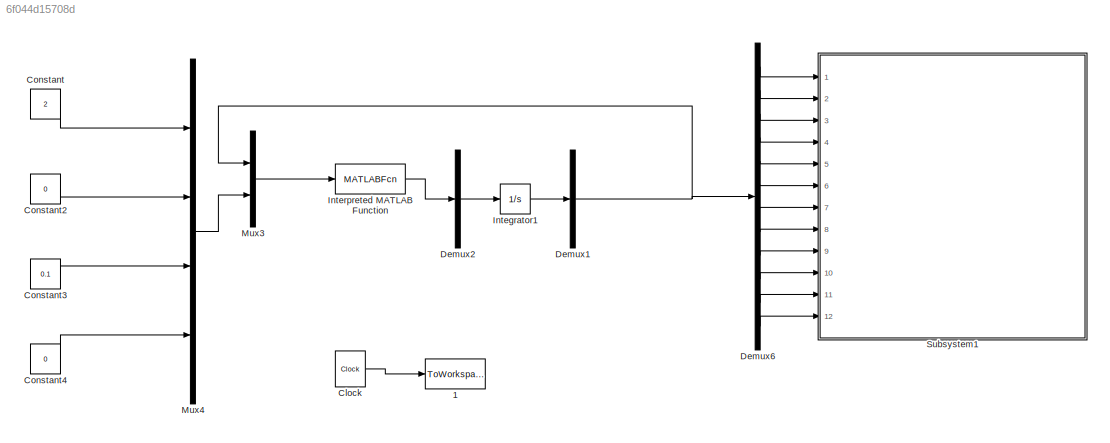
MODEL slx_6f044d15708d
KIND model
CONFIG AbsTol = auto
CONFIG EnableMultiTasking = off
CONFIG FixedStep = auto
CONFIG MaxStep = auto
CONFIG MinStep = auto
CONFIG RelTol = 1e-3
CONFIG SampleTimeConstraint = Unconstrained
CONFIG Solver = VariableStepAuto
CONFIG SolverName = VariableStepAuto
CONFIG StartTime = 0.0
CONFIG StopTime = 10.0
BLOCK [ToWorkspace] 1
  FixptAsFi = on
  MaxDataPoints = inf
  Ports = [1]
  SampleTime = -1
  VariableName = tme
BLOCK [Clock] Clock
BLOCK [Constant] Constant
  Value = 2
BLOCK [Constant] Constant2
  Value = 0
BLOCK [Constant] Constant3
  Value = 0.1
BLOCK [Constant] Constant4
  Value = 0
BLOCK [Demux] Demux1
  Outputs = [12 ]
  Ports = [1, 1]
BLOCK [Demux] Demux2
  Outputs = [12]
  Ports = [1, 1]
BLOCK [Demux] Demux6
  Outputs = [1 1 1 1 1 1 1 1 1 1 1 1]
  Ports = [1, 12]
BLOCK [Integrator] Integrator1
  InitialCondition = XIC
  Ports = [1, 1]
BLOCK [MATLABFcn] Interpreted MATLAB Function
  MATLABFcn = quad_derivative_function_input
  OutputDimensions = 12
  Ports = [1, 1]
BLOCK [Mux] Mux3
  DisplayOption = bar
  Inputs = [12 4 ]
  Ports = [2, 1]
BLOCK [Mux] Mux4
  DisplayOption = bar
  Ports = [4, 1]
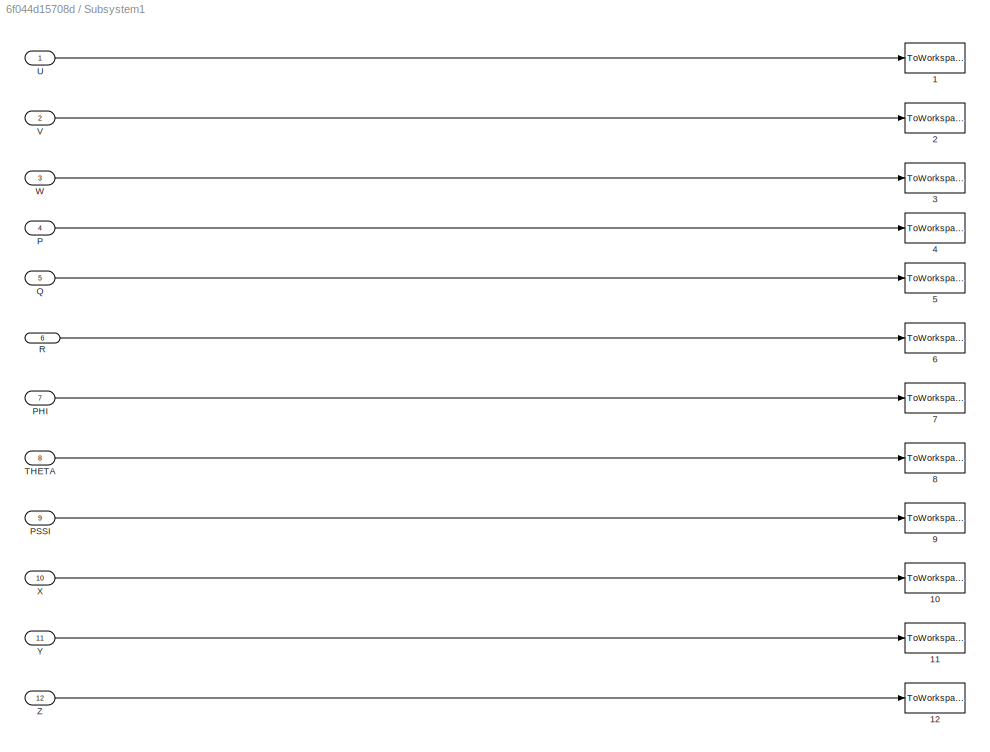
BLOCK [SubSystem] Subsystem1
  Ports = [12]
  RequestExecContextInheritance = off
BLOCK [ToWorkspace] Subsystem1/1
  FixptAsFi = on
  MaxDataPoints = inf
  Ports = [1]
  SampleTime = -1
  VariableName = U
BLOCK [ToWorkspace] Subsystem1/10
  FixptAsFi = on
  MaxDataPoints = inf
  Ports = [1]
  SampleTime = -1
  VariableName = X
BLOCK [ToWorkspace] Subsystem1/11
  FixptAsFi = on
  MaxDataPoints = inf
  Ports = [1]
  SampleTime = -1
  VariableName = Y
BLOCK [ToWorkspace] Subsystem1/12 
  FixptAsFi = on
  MaxDataPoints = inf
  Ports = [1]
  SampleTime = -1
  VariableName = Z
BLOCK [ToWorkspace] Subsystem1/2
  FixptAsFi = on
  MaxDataPoints = inf
  Ports = [1]
  SampleTime = -1
  VariableName = V
BLOCK [ToWorkspace] Subsystem1/3
  FixptAsFi = on
  MaxDataPoints = inf
  Ports = [1]
  SampleTime = -1
  VariableName = W
BLOCK [ToWorkspace] Subsystem1/4
  FixptAsFi = on
  MaxDataPoints = inf
  Ports = [1]
  SampleTime = -1
  VariableName = P
BLOCK [ToWorkspace] Subsystem1/5
  FixptAsFi = on
  MaxDataPoints = inf
  Ports = [1]
  SampleTime = -1
  VariableName = Q
BLOCK [ToWorkspace] Subsystem1/6
  FixptAsFi = on
  MaxDataPoints = inf
  Ports = [1]
  SampleTime = -1
  VariableName = R
BLOCK [ToWorkspace] Subsystem1/7
  FixptAsFi = on
  MaxDataPoints = inf
  Ports = [1]
  SampleTime = -1
  VariableName = PHI
BLOCK [ToWorkspace] Subsystem1/8
  FixptAsFi = on
  MaxDataPoints = inf
  Ports = [1]
  SampleTime = -1
  VariableName = THETA
BLOCK [ToWorkspace] Subsystem1/9
  FixptAsFi = on
  MaxDataPoints = inf
  Ports = [1]
  SampleTime = -1
  VariableName = PSSI
BLOCK [Inport] Subsystem1/P 
  Port = 4
BLOCK [Inport] Subsystem1/PHI
  Port = 7
BLOCK [Inport] Subsystem1/PSSI
  Port = 9
BLOCK [Inport] Subsystem1/Q 
  Port = 5
BLOCK [Inport] Subsystem1/R
  Port = 6
BLOCK [Inport] Subsystem1/THETA
  Port = 8
BLOCK [Inport] Subsystem1/U
BLOCK [Inport] Subsystem1/V
  Port = 2
BLOCK [Inport] Subsystem1/W
  Port = 3
BLOCK [Inport] Subsystem1/X
  Port = 10
BLOCK [Inport] Subsystem1/Y
  Port = 11
BLOCK [Inport] Subsystem1/Z
  Port = 12
LINE Clock:1 -> 1:1
LINE Constant2:1 -> Mux4:2
LINE Constant3:1 -> Mux4:3
LINE Constant4:1 -> Mux4:4
LINE Constant:1 -> Mux4:1
NET Demux1:1 -> Demux6:1, Mux3:1
LINE Demux2:1 -> Integrator1:1
LINE Demux6:1 -> Subsystem1:1
LINE Demux6:10 -> Subsystem1:10
LINE Demux6:11 -> Subsystem1:11
LINE Demux6:12 -> Subsystem1:12
LINE Demux6:2 -> Subsystem1:2
LINE Demux6:3 -> Subsystem1:3
LINE Demux6:4 -> Subsystem1:4
LINE Demux6:5 -> Subsystem1:5
LINE Demux6:6 -> Subsystem1:6
LINE Demux6:7 -> Subsystem1:7
LINE Demux6:8 -> Subsystem1:8
LINE Demux6:9 -> Subsystem1:9
LINE Integrator1:1 -> Demux1:1
LINE Interpreted MATLAB Function:1 -> Demux2:1
LINE Mux3:1 -> Interpreted MATLAB Function:1
LINE Mux4:1 -> Mux3:2
LINE Subsystem1/P :1 -> Subsystem1/4:1
LINE Subsystem1/PHI:1 -> Subsystem1/7:1
LINE Subsystem1/PSSI:1 -> Subsystem1/9:1
LINE Subsystem1/Q :1 -> Subsystem1/5:1
LINE Subsystem1/R:1 -> Subsystem1/6:1
LINE Subsystem1/THETA:1 -> Subsystem1/8:1
LINE Subsystem1/U:1 -> Subsystem1/1:1
LINE Subsystem1/V:1 -> Subsystem1/2:1
LINE Subsystem1/W:1 -> Subsystem1/3:1
LINE Subsystem1/X:1 -> Subsystem1/10:1
LINE Subsystem1/Y:1 -> Subsystem1/11:1
LINE Subsystem1/Z:1 -> Subsystem1/12 :1
note: NET lines group one-source signal fan-out (src -> all destinations, sorted); 1:1 wires keep LINE
